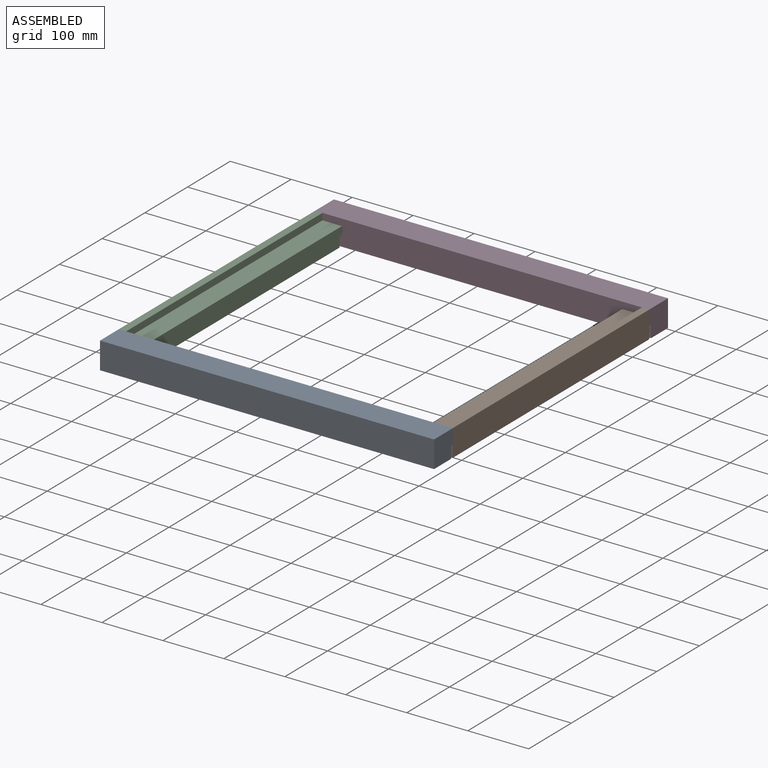
[diagram: assembled view]
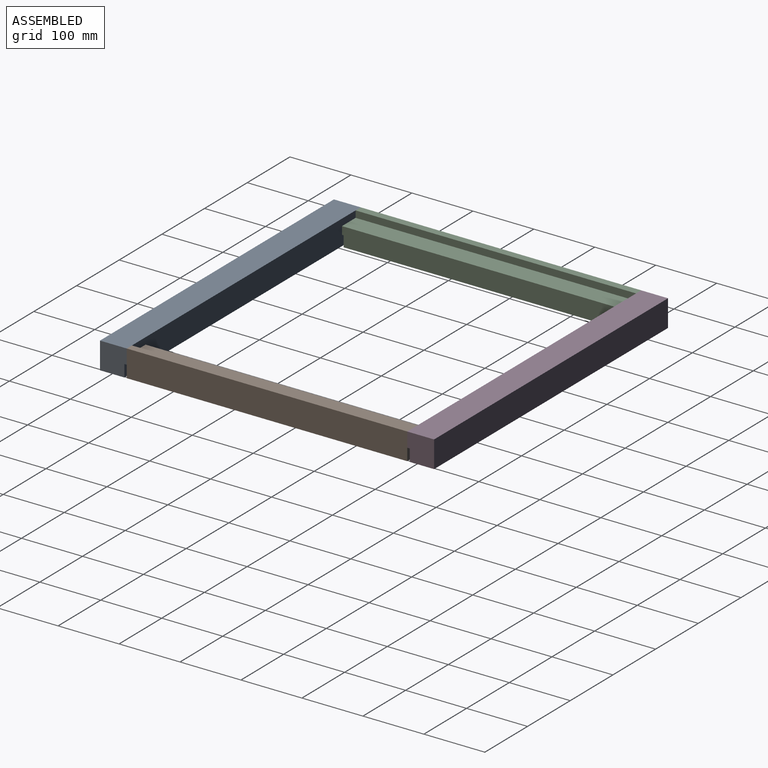
[diagram: assembled view, second angle]
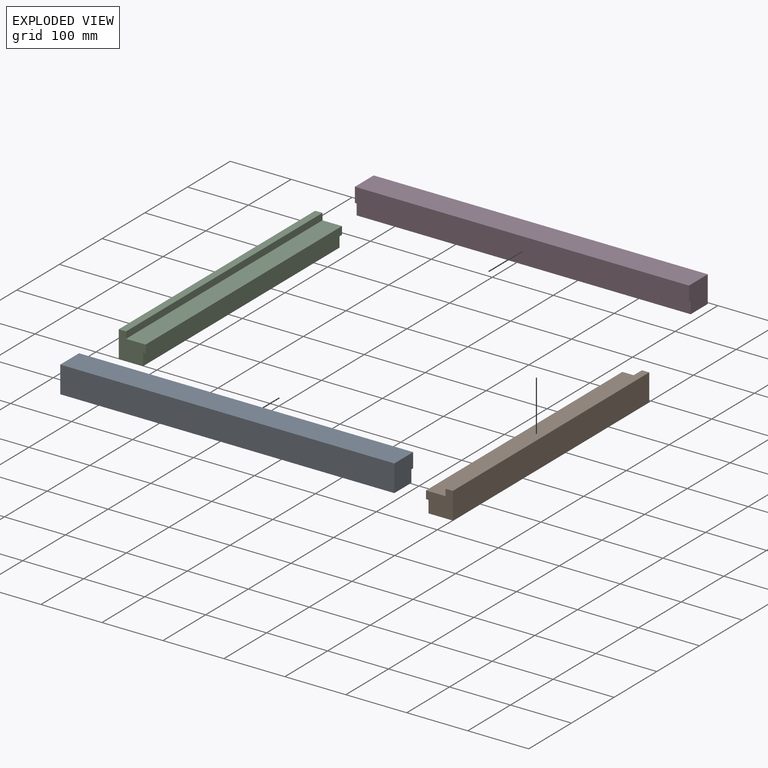
[diagram: exploded view]
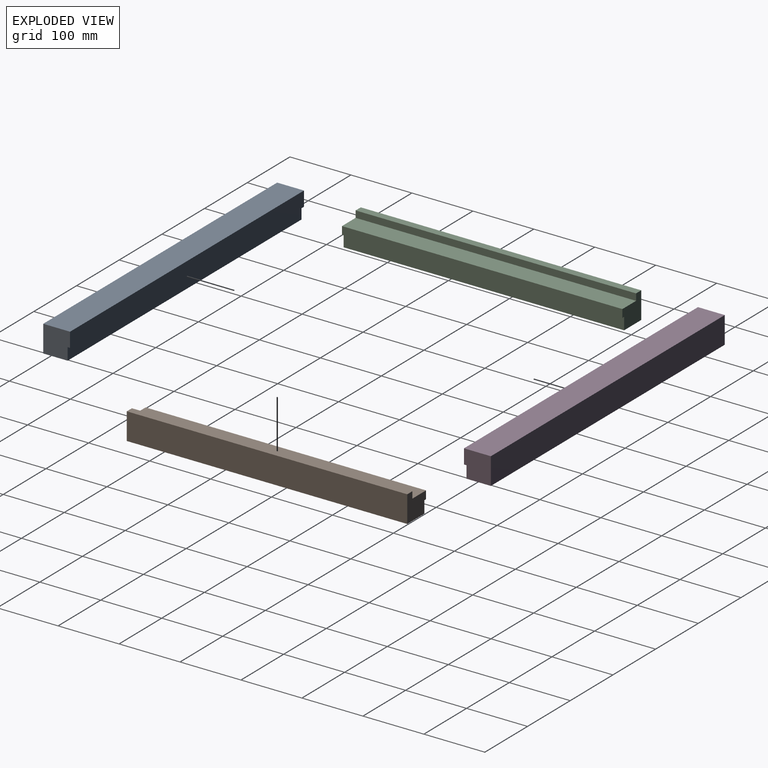
[diagram: exploded view, second angle]
ASSEMBLY  parts=4 mates=3
PART A: 8 faces, bbox 548x44x44 mm
  f0: plane 548x40mm, normal (0,0,-1), area 21920mm2, adj f2,f3,f4,f6
  f1: plane 548x24mm, normal (0,1,0), area 13152mm2, adj f2,f4,f5,f7
  f2: plane 44x44mm, normal (-1,0,0), area 1856mm2, adj f0,f1,f3,f5,f6,f7
  f3: plane 548x44mm, normal (0,-1,0), area 24112mm2, adj f0,f2,f4,f5
  f4: plane 44x44mm, normal (1,0,0), area 1856mm2, adj f0,f1,f3,f5,f6,f7
  f5: plane 548x44mm, normal (0,0,1), area 24112mm2, adj f1,f2,f3,f4
  f6: plane 548x20mm, normal (0,1,0), area 10960mm2, adj f0,f2,f4,f7
  f7: plane 548x4mm, normal (0,0,-1), area 2192mm2, adj f1,f2,f4,f6
PART B: 10 faces, bbox 44x460x44 mm
  f0: plane 44x44mm, normal (0,-1,0), area 1504mm2, adj f1,f2,f3,f4,f6,f7,f8,f9
  f1: plane 460x13mm, normal (1,0,0), area 5980mm2, adj f0,f5,f7,f9
  f2: plane 460x40mm, normal (0,0,-1), area 18400mm2, adj f0,f4,f5,f8
  f3: plane 460x12mm, normal (0,0,1), area 5520mm2, adj f0,f4,f5,f6
  f4: plane 460x44mm, normal (-1,0,0), area 20240mm2, adj f0,f2,f3,f5
  f5: plane 44x44mm, normal (0,1,0), area 1504mm2, adj f1,f2,f3,f4,f6,f7,f8,f9
  f6: plane 460x11mm, normal (1,0,0), area 5060mm2, adj f0,f3,f5,f7
  f7: plane 460x32mm, normal (0,0,1), area 14720mm2, adj f0,f1,f5,f6
  f8: plane 460x20mm, normal (1,0,0), area 9200mm2, adj f0,f2,f5,f9
  f9: plane 460x4mm, normal (0,0,-1), area 1840mm2, adj f0,f1,f5,f8
PART C: same geometry as B
PART D: same geometry as A
PLACE A rot(axis=(-1,0,0),0deg) t=(-192.37,-180.15,65.36)mm
PLACE B rot(axis=(0,0,-1),180deg) t=(37.63,49.85,109.36)mm
PLACE C t=(-422.37,49.85,109.36)mm
PLACE D rot(axis=(0,0,-1),180deg) t=(-192.37,279.85,65.36)mm
MATE fastened A.f5 <-> B.f3  axis (0,0,1) through (81.63,-180.15,109.36)mm
MATE fastened B.f3 <-> D.f5  axis (0,0,1) through (81.63,279.85,109.36)mm
MATE fastened D.f5 <-> C.f3  axis (0,0,1) through (-466.37,279.85,109.36)mm
